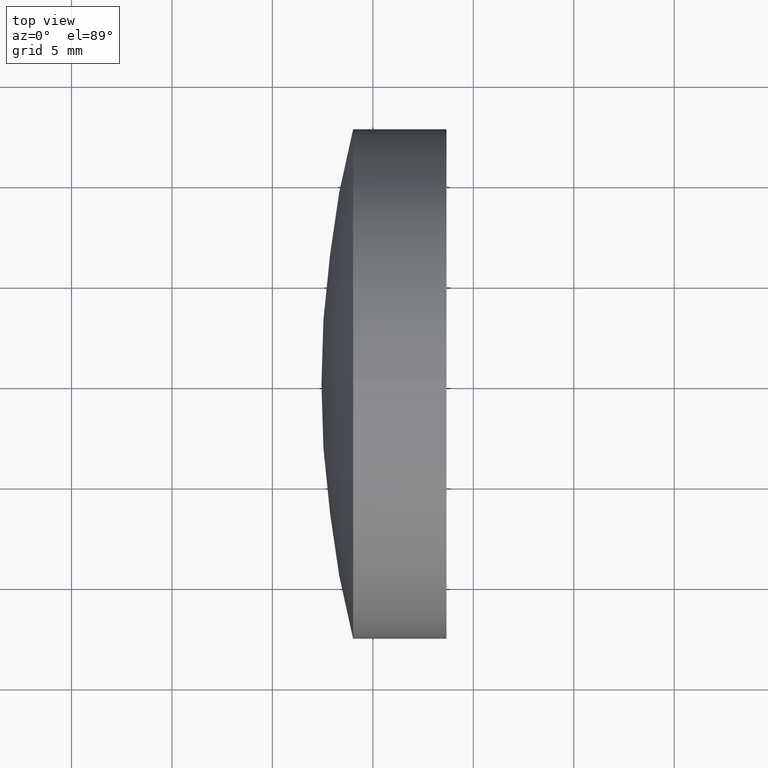
[diagram: clean part render]
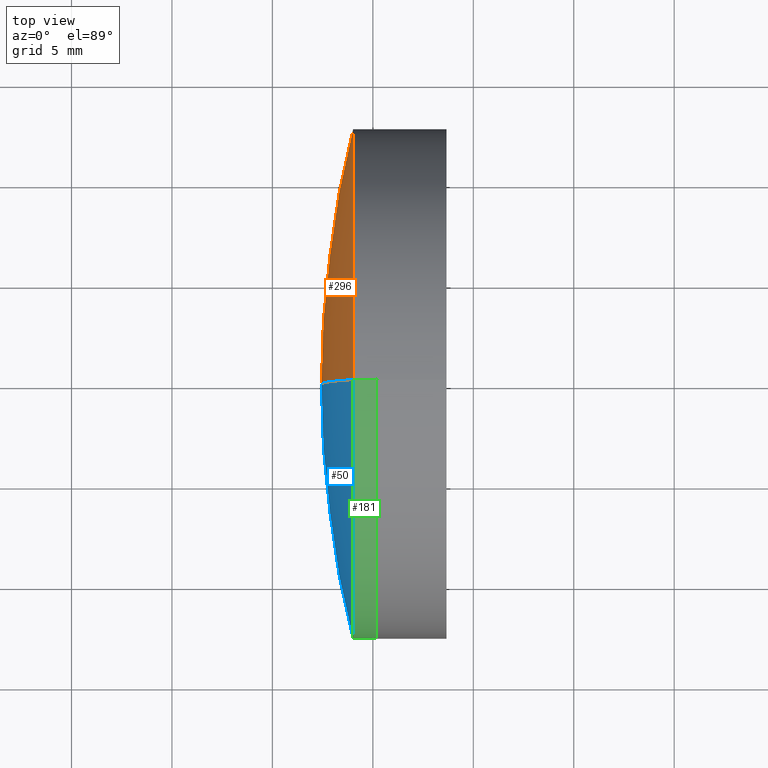
[diagram: same view with three faces highlighted in distinct colors, each labeled with its STEP entity id]
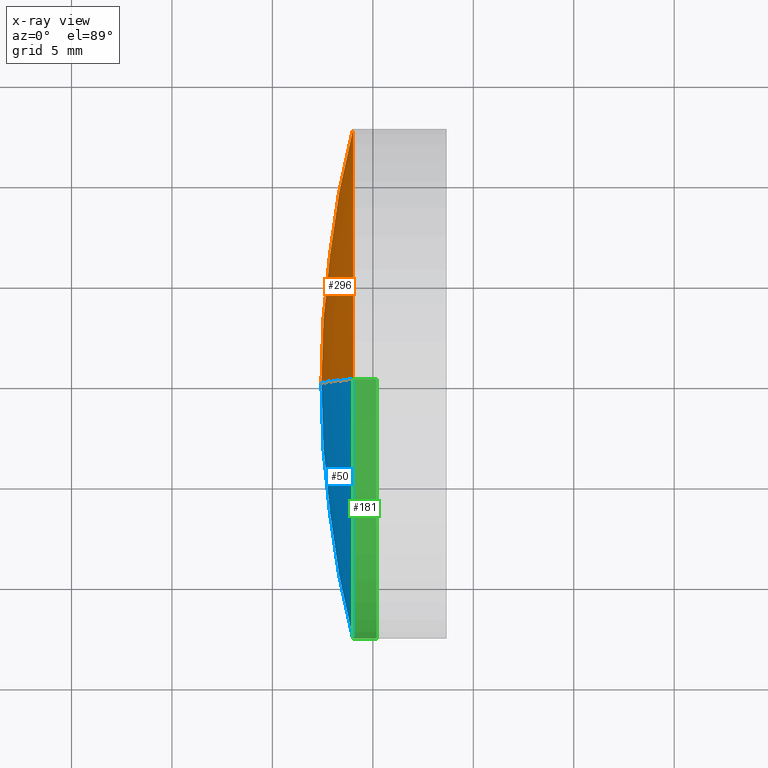
[diagram: x-ray of the same camera — body ghosted, the three highlighted faces saturated]
A machine part, top view with three faces highlighted in distinct colors.
The next image is the same camera in x-ray (body ghosted, the three faces saturated) — at least one of them is partly hidden behind the body in this view.
Their STEP definitions:

[orange] entity #296 — the highlighted spherical surface has radius 52 mm.
#5 = EDGE_CURVE ( 'NONE', #327, #46, #310, .T. ) ;
#15 = AXIS2_PLACEMENT_3D ( 'NONE', #262, #101, #289 ) ;
#29 = DIRECTION ( 'NONE',  ( 0.0000000000000000000, -1.000000000000000000, -1.224646799147353200E-016 ) ) ;
#39 = ORIENTED_EDGE ( 'NONE', *, *, #302, .T. ) ;
#46 = VERTEX_POINT ( 'NONE', #192 ) ;
#58 = ORIENTED_EDGE ( 'NONE', *, *, #233, .T. ) ;
#59 = CARTESIAN_POINT ( 'NONE',  ( 334.0169874091439500, -1.555301434917139600E-015, 12.70000000000001900 ) ) ;
#62 = CARTESIAN_POINT ( 'NONE',  ( 384.4422786824721900, 0.0000000000000000000, 8.273825033181206100E-015 ) ) ;
#76 = DIRECTION ( 'NONE',  ( -0.0000000000000000000, -1.000000000000000000, -0.0000000000000000000 ) ) ;
#84 = DIRECTION ( 'NONE',  ( -1.000000000000000000, -0.0000000000000000000, -0.0000000000000000000 ) ) ;
#94 = AXIS2_PLACEMENT_3D ( 'NONE', #240, #84, #112 ) ;
#101 = DIRECTION ( 'NONE',  ( 0.0000000000000000000, 1.000000000000000000, -0.0000000000000000000 ) ) ;
#112 = DIRECTION ( 'NONE',  ( 0.0000000000000000000, 0.0000000000000000000, 1.000000000000000000 ) ) ;
#146 = AXIS2_PLACEMENT_3D ( 'NONE', #177, #76, #323 ) ;
#148 = CARTESIAN_POINT ( 'NONE',  ( 334.0169874091439500, 0.0000000000000000000, -12.70000000000001000 ) ) ;
#164 = DIRECTION ( 'NONE',  ( 0.0000000000000000000, 1.224646799147353200E-016, -1.000000000000000000 ) ) ;
#170 = SPHERICAL_SURFACE ( 'NONE', #146, 51.99999999999998600 ) ;
#177 = CARTESIAN_POINT ( 'NONE',  ( 384.4422786824721900, 0.0000000000000000000, 8.273825033181206100E-015 ) ) ;
#180 = VERTEX_POINT ( 'NONE', #148 ) ;
#192 = CARTESIAN_POINT ( 'NONE',  ( 332.4422786824722500, 0.0000000000000000000, 5.089743355398088300E-015 ) ) ;
#203 = EDGE_LOOP ( 'NONE', ( #265, #39, #58 ) ) ;
#233 = EDGE_CURVE ( 'NONE', #180, #46, #300, .T. ) ;
#240 = CARTESIAN_POINT ( 'NONE',  ( 334.0169874091439500, 0.0000000000000000000, 0.0000000000000000000 ) ) ;
#262 = CARTESIAN_POINT ( 'NONE',  ( 384.4422786824721900, 0.0000000000000000000, 8.273825033181206100E-015 ) ) ;
#265 = ORIENTED_EDGE ( 'NONE', *, *, #5, .F. ) ;
#286 = CIRCLE ( 'NONE', #94, 12.70000000000000600 ) ;
#287 = AXIS2_PLACEMENT_3D ( 'NONE', #62, #29, #164 ) ;
#289 = DIRECTION ( 'NONE',  ( 0.0000000000000000000, 0.0000000000000000000, 1.000000000000000000 ) ) ;
#296 = ADVANCED_FACE ( 'NONE', ( #330 ), #170, .T. ) ;
#300 = CIRCLE ( 'NONE', #15, 51.99999999999998600 ) ;
#302 = EDGE_CURVE ( 'NONE', #327, #180, #286, .T. ) ;
#310 = CIRCLE ( 'NONE', #287, 51.99999999999998600 ) ;
#323 = DIRECTION ( 'NONE',  ( 0.0000000000000000000, 0.0000000000000000000, -1.000000000000000000 ) ) ;
#327 = VERTEX_POINT ( 'NONE', #59 ) ;
#330 = FACE_OUTER_BOUND ( 'NONE', #203, .T. ) ;

[blue] entity #50 — the highlighted spherical surface has radius 52 mm.
#5 = EDGE_CURVE ( 'NONE', #327, #46, #310, .T. ) ;
#12 = CARTESIAN_POINT ( 'NONE',  ( 334.0169874091439500, 0.0000000000000000000, 0.0000000000000000000 ) ) ;
#15 = AXIS2_PLACEMENT_3D ( 'NONE', #262, #101, #289 ) ;
#29 = DIRECTION ( 'NONE',  ( 0.0000000000000000000, -1.000000000000000000, -1.224646799147353200E-016 ) ) ;
#42 = DIRECTION ( 'NONE',  ( 0.0000000000000000000, 0.0000000000000000000, 1.000000000000000000 ) ) ;
#46 = VERTEX_POINT ( 'NONE', #192 ) ;
#47 = SPHERICAL_SURFACE ( 'NONE', #189, 51.99999999999998600 ) ;
#50 = ADVANCED_FACE ( 'NONE', ( #236 ), #47, .T. ) ;
#59 = CARTESIAN_POINT ( 'NONE',  ( 334.0169874091439500, -1.555301434917139600E-015, 12.70000000000001900 ) ) ;
#62 = CARTESIAN_POINT ( 'NONE',  ( 384.4422786824721900, 0.0000000000000000000, 8.273825033181206100E-015 ) ) ;
#92 = DIRECTION ( 'NONE',  ( 0.0000000000000000000, 0.0000000000000000000, -1.000000000000000000 ) ) ;
#101 = DIRECTION ( 'NONE',  ( 0.0000000000000000000, 1.000000000000000000, -0.0000000000000000000 ) ) ;
#121 = CARTESIAN_POINT ( 'NONE',  ( 384.4422786824721900, 0.0000000000000000000, 8.273825033181206100E-015 ) ) ;
#136 = ORIENTED_EDGE ( 'NONE', *, *, #230, .T. ) ;
#137 = ORIENTED_EDGE ( 'NONE', *, *, #233, .F. ) ;
#148 = CARTESIAN_POINT ( 'NONE',  ( 334.0169874091439500, 0.0000000000000000000, -12.70000000000001000 ) ) ;
#164 = DIRECTION ( 'NONE',  ( 0.0000000000000000000, 1.224646799147353200E-016, -1.000000000000000000 ) ) ;
#180 = VERTEX_POINT ( 'NONE', #148 ) ;
#189 = AXIS2_PLACEMENT_3D ( 'NONE', #121, #250, #92 ) ;
#192 = CARTESIAN_POINT ( 'NONE',  ( 332.4422786824722500, 0.0000000000000000000, 5.089743355398088300E-015 ) ) ;
#201 = DIRECTION ( 'NONE',  ( -1.000000000000000000, -0.0000000000000000000, -0.0000000000000000000 ) ) ;
#220 = CIRCLE ( 'NONE', #347, 12.70000000000000600 ) ;
#230 = EDGE_CURVE ( 'NONE', #180, #327, #220, .T. ) ;
#233 = EDGE_CURVE ( 'NONE', #180, #46, #300, .T. ) ;
#236 = FACE_OUTER_BOUND ( 'NONE', #308, .T. ) ;
#250 = DIRECTION ( 'NONE',  ( -0.0000000000000000000, -1.000000000000000000, -0.0000000000000000000 ) ) ;
#262 = CARTESIAN_POINT ( 'NONE',  ( 384.4422786824721900, 0.0000000000000000000, 8.273825033181206100E-015 ) ) ;
#287 = AXIS2_PLACEMENT_3D ( 'NONE', #62, #29, #164 ) ;
#289 = DIRECTION ( 'NONE',  ( 0.0000000000000000000, 0.0000000000000000000, 1.000000000000000000 ) ) ;
#300 = CIRCLE ( 'NONE', #15, 51.99999999999998600 ) ;
#308 = EDGE_LOOP ( 'NONE', ( #136, #320, #137 ) ) ;
#310 = CIRCLE ( 'NONE', #287, 51.99999999999998600 ) ;
#320 = ORIENTED_EDGE ( 'NONE', *, *, #5, .T. ) ;
#327 = VERTEX_POINT ( 'NONE', #59 ) ;
#347 = AXIS2_PLACEMENT_3D ( 'NONE', #12, #201, #42 ) ;

[green] entity #181 — the highlighted cylindrical surface (partial cylindrical patch) has radius 12.7 mm, axis along (-1, -0, -0).
#12 = CARTESIAN_POINT ( 'NONE',  ( 334.0169874091439500, 0.0000000000000000000, 0.0000000000000000000 ) ) ;
#36 = DIRECTION ( 'NONE',  ( -1.000000000000000000, -0.0000000000000000000, -0.0000000000000000000 ) ) ;
#42 = DIRECTION ( 'NONE',  ( 0.0000000000000000000, 0.0000000000000000000, 1.000000000000000000 ) ) ;
#48 = ORIENTED_EDGE ( 'NONE', *, *, #206, .T. ) ;
#59 = CARTESIAN_POINT ( 'NONE',  ( 334.0169874091439500, -1.555301434917139600E-015, 12.70000000000001900 ) ) ;
#66 = DIRECTION ( 'NONE',  ( -1.000000000000000000, -0.0000000000000000000, -0.0000000000000000000 ) ) ;
#79 = LINE ( 'NONE', #248, #285 ) ;
#88 = EDGE_CURVE ( 'NONE', #107, #180, #79, .T. ) ;
#95 = CARTESIAN_POINT ( 'NONE',  ( 335.1955762872631200, 1.555301434917139200E-015, -12.70000000000000600 ) ) ;
#99 = DIRECTION ( 'NONE',  ( -1.000000000000000000, -0.0000000000000000000, -0.0000000000000000000 ) ) ;
#102 = LINE ( 'NONE', #171, #165 ) ;
#107 = VERTEX_POINT ( 'NONE', #95 ) ;
#129 = CARTESIAN_POINT ( 'NONE',  ( 335.1955762872631200, 0.0000000000000000000, 12.70000000000000600 ) ) ;
#141 = EDGE_CURVE ( 'NONE', #107, #215, #261, .T. ) ;
#148 = CARTESIAN_POINT ( 'NONE',  ( 334.0169874091439500, 0.0000000000000000000, -12.70000000000001000 ) ) ;
#152 = AXIS2_PLACEMENT_3D ( 'NONE', #197, #36, #224 ) ;
#165 = VECTOR ( 'NONE', #99, 1000.000000000000000 ) ;
#171 = CARTESIAN_POINT ( 'NONE',  ( 124.5233095260452400, 0.0000000000000000000, 12.70000000000000600 ) ) ;
#180 = VERTEX_POINT ( 'NONE', #148 ) ;
#181 = ADVANCED_FACE ( 'NONE', ( #251 ), #306, .T. ) ;
#185 = EDGE_LOOP ( 'NONE', ( #291, #253, #48, #331 ) ) ;
#197 = CARTESIAN_POINT ( 'NONE',  ( 335.1955762872631200, 0.0000000000000000000, 0.0000000000000000000 ) ) ;
#198 = CARTESIAN_POINT ( 'NONE',  ( 124.5233095260452400, 0.0000000000000000000, 0.0000000000000000000 ) ) ;
#201 = DIRECTION ( 'NONE',  ( -1.000000000000000000, -0.0000000000000000000, -0.0000000000000000000 ) ) ;
#206 = EDGE_CURVE ( 'NONE', #215, #327, #102, .T. ) ;
#215 = VERTEX_POINT ( 'NONE', #129 ) ;
#220 = CIRCLE ( 'NONE', #347, 12.70000000000000600 ) ;
#224 = DIRECTION ( 'NONE',  ( 0.0000000000000000000, 0.0000000000000000000, 1.000000000000000000 ) ) ;
#230 = EDGE_CURVE ( 'NONE', #180, #327, #220, .T. ) ;
#248 = CARTESIAN_POINT ( 'NONE',  ( 124.5233095260452400, 1.555301434917139200E-015, -12.70000000000000600 ) ) ;
#251 = FACE_OUTER_BOUND ( 'NONE', #185, .T. ) ;
#253 = ORIENTED_EDGE ( 'NONE', *, *, #141, .T. ) ;
#257 = DIRECTION ( 'NONE',  ( -1.000000000000000000, -0.0000000000000000000, -0.0000000000000000000 ) ) ;
#258 = DIRECTION ( 'NONE',  ( 0.0000000000000000000, 0.0000000000000000000, 1.000000000000000000 ) ) ;
#261 = CIRCLE ( 'NONE', #152, 12.70000000000000600 ) ;
#285 = VECTOR ( 'NONE', #66, 1000.000000000000000 ) ;
#291 = ORIENTED_EDGE ( 'NONE', *, *, #88, .F. ) ;
#306 = CYLINDRICAL_SURFACE ( 'NONE', #316, 12.70000000000000600 ) ;
#316 = AXIS2_PLACEMENT_3D ( 'NONE', #198, #257, #258 ) ;
#327 = VERTEX_POINT ( 'NONE', #59 ) ;
#331 = ORIENTED_EDGE ( 'NONE', *, *, #230, .F. ) ;
#347 = AXIS2_PLACEMENT_3D ( 'NONE', #12, #201, #42 ) ;